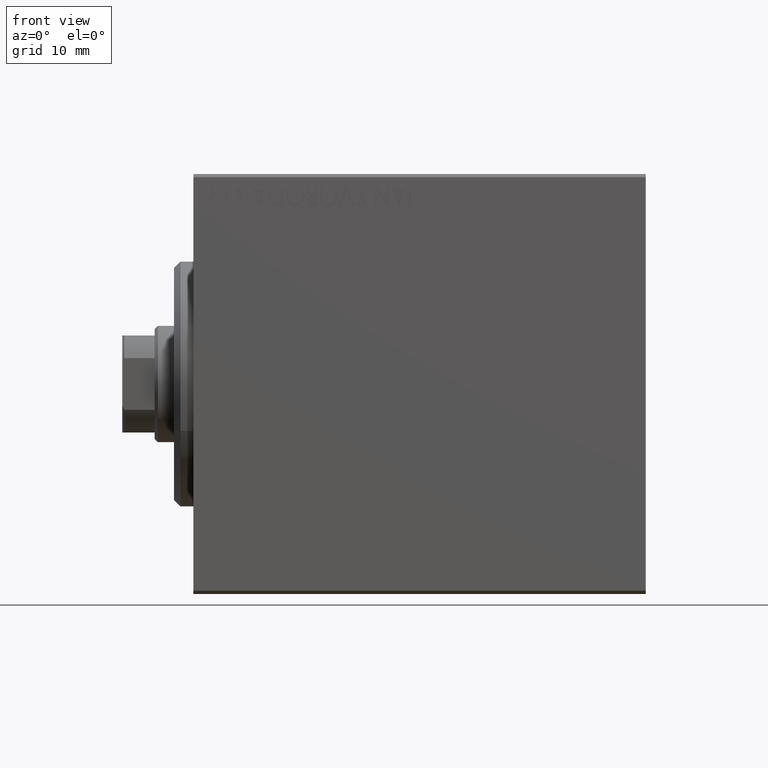
[diagram: clean part render]
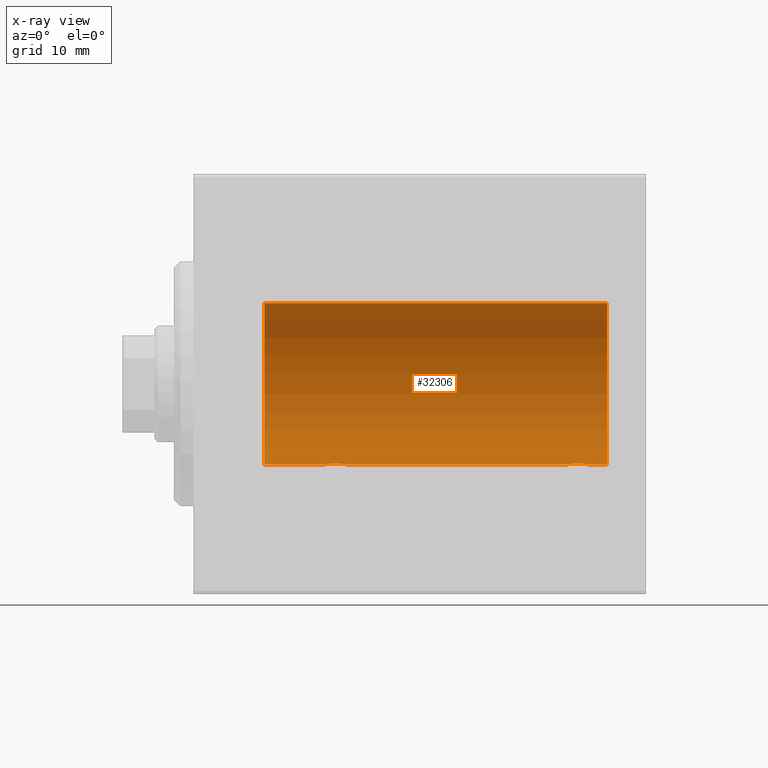
[diagram: x-ray — body ghosted, one internal face saturated and labeled with its STEP entity id]
A machine part, front view, then the same camera in x-ray: the body is ghosted and one INTERNAL B-rep face — a face not visible from any outside direction — is saturated and labeled: STEP entity #32306.
In plain terms, the highlighted cylindrical surface (partial cylindrical patch) has radius 12.5 mm, axis along (-1, -0, -0).
Its self-contained STEP definition (entity closure, byte-faithful):
#99 = CARTESIAN_POINT ( 'NONE',  ( 61.39773031393659863, 0.6448065707252995660, -12.48394649977301718 ) ) ;
#534 = CARTESIAN_POINT ( 'NONE',  ( 24.00000000000000000, 1.530808426277417854E-15, -12.50000000000000000 ) ) ;
#2126 = CARTESIAN_POINT ( 'NONE',  ( 10.99999999999999645, 1.530808498934191521E-15, -12.50000000000000000 ) ) ;
#2370 = CARTESIAN_POINT ( 'NONE',  ( 23.73470742397611843, 1.003863686549172352, -12.46009879577771606 ) ) ;
#2596 = CARTESIAN_POINT ( 'NONE',  ( 22.26269462454597914, 1.986986967296540119, -12.34109209020652465 ) ) ;
#2599 = CARTESIAN_POINT ( 'NONE',  ( 57.99398366327209686, 1.322451657002070347, -12.43019346654085489 ) ) ;
#3025 = CARTESIAN_POINT ( 'NONE',  ( 58.49316879552502257, 1.747608771958137241, -12.37764291807175709 ) ) ;
#3066 = AXIS2_PLACEMENT_3D ( 'NONE', #9015, #26110, #26327 ) ;
#3548 = LINE ( 'NONE', #37118, #37109 ) ;
#4133 = ORIENTED_EDGE ( 'NONE', *, *, #15653, .T. ) ;
#4334 = CARTESIAN_POINT ( 'NONE',  ( 61.43561774521850083, 0.5201193324741332225, -12.48983485452574982 ) ) ;
#4515 = VECTOR ( 'NONE', #9490, 1000.000000000000000 ) ;
#5479 = CARTESIAN_POINT ( 'NONE',  ( 21.47436412829510033, 1.947190906025044077, -12.34781876294798053 ) ) ;
#5556 = CARTESIAN_POINT ( 'NONE',  ( 64.00000000000000000, 1.530808498934191521E-15, -12.50000000000000000 ) ) ;
#5595 = ORIENTED_EDGE ( 'NONE', *, *, #10865, .T. ) ;
#5932 = CARTESIAN_POINT ( 'NONE',  ( 21.73788193668374902, 1.999901172190678533, -12.33897869807161385 ) ) ;
#7580 = CARTESIAN_POINT ( 'NONE',  ( 10.99999999999999645, 0.000000000000000000, 12.50000000000000000 ) ) ;
#8596 = CARTESIAN_POINT ( 'NONE',  ( 22.12992629360264729, 2.000049200055402210, -12.33895470450623044 ) ) ;
#8729 = EDGE_CURVE ( 'NONE', #21159, #32259, #22792, .T. ) ;
#9015 = CARTESIAN_POINT ( 'NONE',  ( 64.00000000000000000, 0.000000000000000000, 0.000000000000000000 ) ) ;
#9190 = EDGE_LOOP ( 'NONE', ( #12830, #21834, #5595, #27243, #17038, #4133, #12511, #43923 ) ) ;
#9264 = CARTESIAN_POINT ( 'NONE',  ( 20.20300788371381273, 0.8876934327478117615, -12.46903010196599304 ) ) ;
#9267 = CARTESIAN_POINT ( 'NONE',  ( 57.70300788371382339, 0.8876934327478099851, -12.46903010196599659 ) ) ;
#9490 = DIRECTION ( 'NONE',  ( -1.000000000000000000, -0.000000000000000000, -0.000000000000000000 ) ) ;
#9492 = CARTESIAN_POINT ( 'NONE',  ( 60.71980790594580668, 1.590288205413971090, -12.39864157855465088 ) ) ;
#9917 = CARTESIAN_POINT ( 'NONE',  ( 59.23788193668374902, 1.999901172190674981, -12.33897869807161207 ) ) ;
#10454 = DIRECTION ( 'NONE',  ( -1.000000000000000000, -0.000000000000000000, -0.000000000000000000 ) ) ;
#10865 = EDGE_CURVE ( 'NONE', #18257, #13395, #15281, .T. ) ;
#11518 = VECTOR ( 'NONE', #26155, 1000.000000000000000 ) ;
#11938 = CARTESIAN_POINT ( 'NONE',  ( 20.01301208516349206, 0.2624928479599882847, -12.49789934882883458 ) ) ;
#12141 = EDGE_CURVE ( 'NONE', #15301, #32259, #21991, .T. ) ;
#12152 = CARTESIAN_POINT ( 'NONE',  ( 19.99999999999999645, -3.966047509268588167E-15, -12.50000000000000000 ) ) ;
#12376 = CARTESIAN_POINT ( 'NONE',  ( 22.51937350851555308, 1.935814255713574905, -12.34922241902463114 ) ) ;
#12511 = ORIENTED_EDGE ( 'NONE', *, *, #26632, .F. ) ;
#12600 = CARTESIAN_POINT ( 'NONE',  ( 57.60252270298195043, 0.6455696738844883820, -12.48390768591463384 ) ) ;
#12815 = CARTESIAN_POINT ( 'NONE',  ( 20.49398366327207910, 1.322451657002076120, -12.43019346654084956 ) ) ;
#12817 = CARTESIAN_POINT ( 'NONE',  ( 60.50335814299182857, 1.734998657226762608, -12.37922086519035680 ) ) ;
#12830 = ORIENTED_EDGE ( 'NONE', *, *, #8729, .F. ) ;
#12895 = DIRECTION ( 'NONE',  ( 0.000000000000000000, 0.000000000000000000, 1.000000000000000000 ) ) ;
#13114 = DIRECTION ( 'NONE',  ( -1.000000000000000000, 0.000000000000000000, 0.000000000000000000 ) ) ;
#13395 = VERTEX_POINT ( 'NONE', #7580 ) ;
#14110 = CARTESIAN_POINT ( 'NONE',  ( 61.50000000000000711, 1.530808426270318106E-15, -12.50000000000000000 ) ) ;
#15093 = CARTESIAN_POINT ( 'NONE',  ( 19.99999999999999645, -3.966047509268588167E-15, -12.50000000000000000 ) ) ;
#15281 = LINE ( 'NONE', #15497, #11518 ) ;
#15301 = VERTEX_POINT ( 'NONE', #35538 ) ;
#15497 = CARTESIAN_POINT ( 'NONE',  ( 64.00000000000000000, 0.000000000000000000, 12.50000000000000000 ) ) ;
#15653 = EDGE_CURVE ( 'NONE', #26762, #26031, #23923, .T. ) ;
#15686 = EDGE_CURVE ( 'NONE', #26762, #42323, #26363, .T. ) ;
#15698 = CARTESIAN_POINT ( 'NONE',  ( 19.99999999999999645, 0.1323736289504319763, -12.50000000000000000 ) ) ;
#16365 = CARTESIAN_POINT ( 'NONE',  ( 57.51301208516348851, 0.2624928479599860642, -12.49789934882883458 ) ) ;
#16801 = CARTESIAN_POINT ( 'NONE',  ( 60.01937350851554243, 1.935814255713572019, -12.34922241902462758 ) ) ;
#17038 = ORIENTED_EDGE ( 'NONE', *, *, #15686, .F. ) ;
#17698 = CARTESIAN_POINT ( 'NONE',  ( 64.00000000000000000, 0.000000000000000000, 12.50000000000000000 ) ) ;
#18061 = CIRCLE ( 'NONE', #38613, 12.50000000000000000 ) ;
#18257 = VERTEX_POINT ( 'NONE', #17698 ) ;
#18319 = CARTESIAN_POINT ( 'NONE',  ( 64.00000000000000000, 0.000000000000000000, 0.000000000000000000 ) ) ;
#18751 = EDGE_CURVE ( 'NONE', #13395, #42323, #18802, .T. ) ;
#18802 = CIRCLE ( 'NONE', #43651, 12.50000000000000000 ) ;
#18828 = CARTESIAN_POINT ( 'NONE',  ( 23.93561774521849728, 0.5201193324741352209, -12.48983485452574982 ) ) ;
#19040 = CARTESIAN_POINT ( 'NONE',  ( 22.88656313533016373, 1.797558627508998086, -12.37018026341338839 ) ) ;
#19261 = CARTESIAN_POINT ( 'NONE',  ( 24.00000000000000000, 1.530808426277417854E-15, -12.50000000000000000 ) ) ;
#19491 = CARTESIAN_POINT ( 'NONE',  ( 57.90963319990594727, 1.219754986802277896, -12.44082361696003680 ) ) ;
#19698 = CARTESIAN_POINT ( 'NONE',  ( 20.06395648222636652, 0.5184196815546032733, -12.48990118705761532 ) ) ;
#20980 = DIRECTION ( 'NONE',  ( -1.000000000000000000, 0.000000000000000000, 0.000000000000000000 ) ) ;
#21159 = VERTEX_POINT ( 'NONE', #5556 ) ;
#21192 = DIRECTION ( 'NONE',  ( 0.000000000000000000, 0.000000000000000000, 1.000000000000000000 ) ) ;
#21834 = ORIENTED_EDGE ( 'NONE', *, *, #34088, .F. ) ;
#21991 = B_SPLINE_CURVE_WITH_KNOTS ( 'NONE', 3,
 ( #26146, #33476, #16365, #39705, #12600, #9267, #39925, #19491, #2599, #23254, #3025, #43282, #9917, #27016, #22811, #16801, #43930, #29710, #12817, #9492, #23036, #29923, #36598, #43498, #34785, #99, #4334, #41470, #34346, #14110 ),
 .UNSPECIFIED., .F., .F.,
 ( 4, 2, 2, 2, 2, 2, 2, 2, 2, 2, 2, 2, 2, 2, 4 ),
 ( 8.524058063799960461E-19, 0.0003914362731607507980, 0.0007828725463215007287, 0.001174308819482250280, 0.001565745092642999723, 0.002348617638964514438, 0.003131490185286029369, 0.003522926458446797027, 0.003914362731607565551, 0.004305799004768333209, 0.004697235277929100866, 0.005088671551089869391, 0.005480107824250637048, 0.005871544097411405573, 0.006262980370572173230 ),
 .UNSPECIFIED. ) ;
#22147 = CARTESIAN_POINT ( 'NONE',  ( 23.98690384766256400, 0.2633501011236120681, -12.49788564268284041 ) ) ;
#22552 = FACE_OUTER_BOUND ( 'NONE', #9190, .T. ) ;
#22586 = CARTESIAN_POINT ( 'NONE',  ( 20.26446744561862801, 1.002494658017155871, -12.46021263690096958 ) ) ;
#22792 = LINE ( 'NONE', #42383, #32856 ) ;
#22809 = CARTESIAN_POINT ( 'NONE',  ( 23.89773031393658087, 0.6448065707253023415, -12.48394649977302073 ) ) ;
#22811 = CARTESIAN_POINT ( 'NONE',  ( 59.76269462454598624, 1.986986967296537232, -12.34109209020652465 ) ) ;
#22996 = CYLINDRICAL_SURFACE ( 'NONE', #3066, 12.50000000000000000 ) ;
#23036 = CARTESIAN_POINT ( 'NONE',  ( 60.82102833500698580, 1.507394620545638331, -12.40913174964213184 ) ) ;
#23254 = CARTESIAN_POINT ( 'NONE',  ( 58.27033506126852558, 1.598680238462363956, -12.39873273758732353 ) ) ;
#23923 = B_SPLINE_CURVE_WITH_KNOTS ( 'NONE', 3,
 ( #12152, #15698, #11938, #19698, #29263, #9264, #22586, #39042, #12815, #25699, #35938, #5479, #5932, #8596, #2596, #12376, #29494, #19040, #39702, #25926, #39258, #39487, #36147, #2370, #32602, #22809, #18828, #22147, #29043, #19261 ),
 .UNSPECIFIED., .F., .F.,
 ( 4, 2, 2, 2, 2, 2, 2, 2, 2, 2, 2, 2, 2, 2, 4 ),
 ( 3.611342868676865251E-19, 0.0003914362731607586585, 0.0007828725463215168833, 0.001174308819482275217, 0.001565745092643033550, 0.002348617638964549999, 0.003131490185286066666, 0.003522926458446830420, 0.003914362731607594174, 0.004305799004768357495, 0.004697235277929121683, 0.005088671551089885003, 0.005480107824250649191, 0.005871544097411412512, 0.006262980370572176700 ),
 .UNSPECIFIED. ) ;
#25699 = CARTESIAN_POINT ( 'NONE',  ( 20.77033506126850426, 1.598680238462369951, -12.39873273758732175 ) ) ;
#25926 = CARTESIAN_POINT ( 'NONE',  ( 23.21980790594580313, 1.590288205413975309, -12.39864157855465088 ) ) ;
#26031 = VERTEX_POINT ( 'NONE', #534 ) ;
#26110 = DIRECTION ( 'NONE',  ( -1.000000000000000000, -0.000000000000000000, -0.000000000000000000 ) ) ;
#26146 = CARTESIAN_POINT ( 'NONE',  ( 57.50000000000000000, -7.533308568696040923E-15, -12.50000000000000000 ) ) ;
#26155 = DIRECTION ( 'NONE',  ( -1.000000000000000000, -0.000000000000000000, -0.000000000000000000 ) ) ;
#26327 = DIRECTION ( 'NONE',  ( 0.000000000000000000, 0.000000000000000000, 1.000000000000000000 ) ) ;
#26363 = LINE ( 'NONE', #39923, #4515 ) ;
#26632 = EDGE_CURVE ( 'NONE', #15301, #26031, #3548, .T. ) ;
#26762 = VERTEX_POINT ( 'NONE', #15093 ) ;
#27016 = CARTESIAN_POINT ( 'NONE',  ( 59.62992629360267216, 2.000049200055399545, -12.33895470450622867 ) ) ;
#27243 = ORIENTED_EDGE ( 'NONE', *, *, #18751, .T. ) ;
#29043 = CARTESIAN_POINT ( 'NONE',  ( 24.00000000000000711, 0.1306394121199392910, -12.50000000000000533 ) ) ;
#29263 = CARTESIAN_POINT ( 'NONE',  ( 20.10252270298193622, 0.6455696738844897142, -12.48390768591463207 ) ) ;
#29494 = CARTESIAN_POINT ( 'NONE',  ( 22.64415233770293412, 1.897967064543090165, -12.35517291625592051 ) ) ;
#29710 = CARTESIAN_POINT ( 'NONE',  ( 60.38656313533017084, 1.797558627508995643, -12.37018026341338484 ) ) ;
#29783 = CARTESIAN_POINT ( 'NONE',  ( 10.99999999999999645, 0.000000000000000000, 0.000000000000000000 ) ) ;
#29923 = CARTESIAN_POINT ( 'NONE',  ( 61.00733550364321900, 1.321095788880535915, -12.43034574091278088 ) ) ;
#32259 = VERTEX_POINT ( 'NONE', #36559 ) ;
#32306 = ADVANCED_FACE ( 'NONE', ( #22552 ), #22996, .F. ) ;
#32602 = CARTESIAN_POINT ( 'NONE',  ( 23.79742491916155700, 0.8868029758979399935, -12.46909283808506430 ) ) ;
#32856 = VECTOR ( 'NONE', #43265, 1000.000000000000000 ) ;
#33476 = CARTESIAN_POINT ( 'NONE',  ( 57.50000000000002132, 0.1323736289504287567, -12.50000000000000178 ) ) ;
#34088 = EDGE_CURVE ( 'NONE', #18257, #21159, #18061, .T. ) ;
#34346 = CARTESIAN_POINT ( 'NONE',  ( 61.50000000000001421, 0.1306394121199392355, -12.50000000000000178 ) ) ;
#34785 = CARTESIAN_POINT ( 'NONE',  ( 61.29742491916157121, 0.8868029758979365518, -12.46909283808506430 ) ) ;
#35538 = CARTESIAN_POINT ( 'NONE',  ( 57.50000000000000000, -7.533308568696040923E-15, -12.50000000000000000 ) ) ;
#35938 = CARTESIAN_POINT ( 'NONE',  ( 20.99316879552500481, 1.747608771958139906, -12.37764291807175354 ) ) ;
#36147 = CARTESIAN_POINT ( 'NONE',  ( 23.58991408680628155, 1.220297236145721609, -12.44076681548080288 ) ) ;
#36559 = CARTESIAN_POINT ( 'NONE',  ( 61.50000000000000711, 1.530808426270318106E-15, -12.50000000000000000 ) ) ;
#36598 = CARTESIAN_POINT ( 'NONE',  ( 61.08991408680628155, 1.220297236145721387, -12.44076681548080110 ) ) ;
#37109 = VECTOR ( 'NONE', #10454, 1000.000000000000000 ) ;
#37118 = CARTESIAN_POINT ( 'NONE',  ( 64.00000000000000000, 1.530808498934191521E-15, -12.50000000000000000 ) ) ;
#38613 = AXIS2_PLACEMENT_3D ( 'NONE', #18319, #20980, #21192 ) ;
#39042 = CARTESIAN_POINT ( 'NONE',  ( 20.40963319990594016, 1.219754986802279451, -12.44082361696003503 ) ) ;
#39258 = CARTESIAN_POINT ( 'NONE',  ( 23.32102833500698225, 1.507394620545640773, -12.40913174964213184 ) ) ;
#39487 = CARTESIAN_POINT ( 'NONE',  ( 23.50733550364322255, 1.321095788880538136, -12.43034574091277911 ) ) ;
#39702 = CARTESIAN_POINT ( 'NONE',  ( 23.00335814299181436, 1.734998657226765939, -12.37922086519035325 ) ) ;
#39705 = CARTESIAN_POINT ( 'NONE',  ( 57.56395648222637362, 0.5184196815546008308, -12.48990118705761354 ) ) ;
#39923 = CARTESIAN_POINT ( 'NONE',  ( 64.00000000000000000, 1.530808498934191521E-15, -12.50000000000000000 ) ) ;
#39925 = CARTESIAN_POINT ( 'NONE',  ( 57.76446744561862801, 1.002494658017153872, -12.46021263690097136 ) ) ;
#41470 = CARTESIAN_POINT ( 'NONE',  ( 61.48690384766256045, 0.2633501011236106804, -12.49788564268283864 ) ) ;
#42323 = VERTEX_POINT ( 'NONE', #2126 ) ;
#42383 = CARTESIAN_POINT ( 'NONE',  ( 64.00000000000000000, 1.530808498934191521E-15, -12.50000000000000000 ) ) ;
#43265 = DIRECTION ( 'NONE',  ( -1.000000000000000000, -0.000000000000000000, -0.000000000000000000 ) ) ;
#43282 = CARTESIAN_POINT ( 'NONE',  ( 58.97436412829508612, 1.947190906025040746, -12.34781876294798231 ) ) ;
#43498 = CARTESIAN_POINT ( 'NONE',  ( 61.23470742397612554, 1.003863686549173462, -12.46009879577771429 ) ) ;
#43651 = AXIS2_PLACEMENT_3D ( 'NONE', #29783, #13114, #12895 ) ;
#43923 = ORIENTED_EDGE ( 'NONE', *, *, #12141, .T. ) ;
#43930 = CARTESIAN_POINT ( 'NONE',  ( 60.14415233770295544, 1.897967064543087723, -12.35517291625591874 ) ) ;